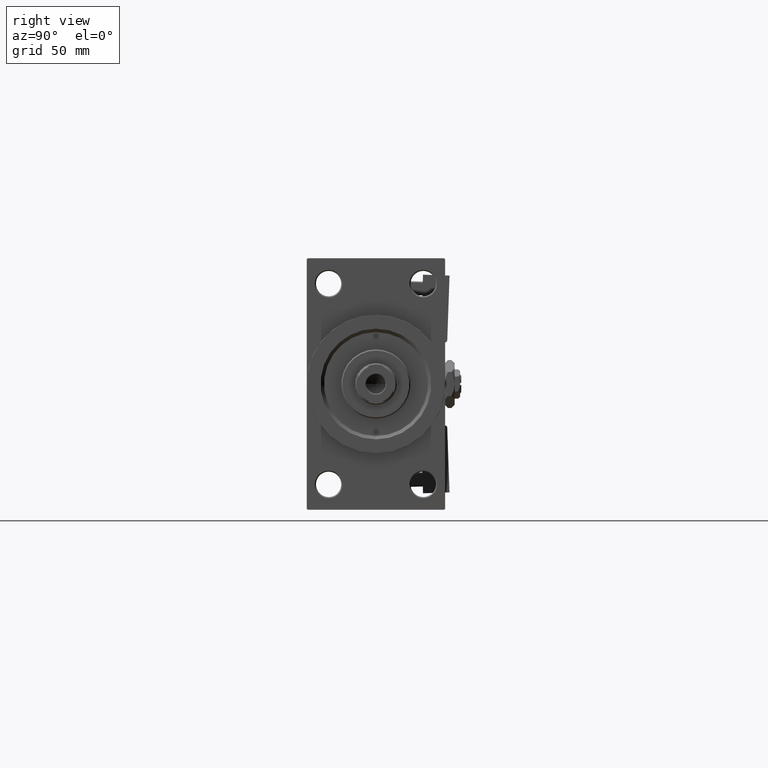
[diagram: clean part render]
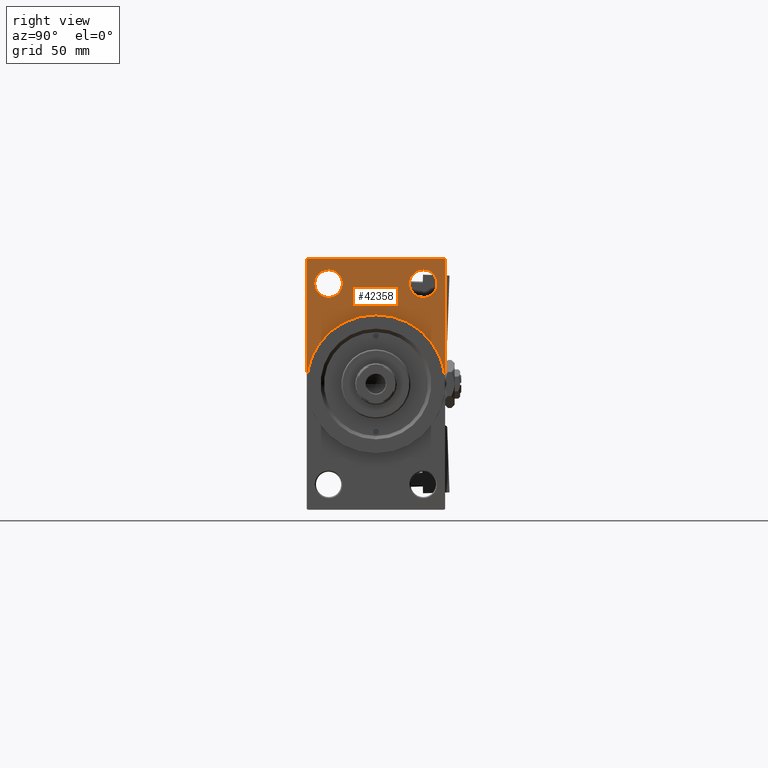
[diagram: same view with one face highlighted and labeled with its STEP entity id]
A machine part, right view. The second image highlights one B-rep face of the part: STEP entity #42358.
In plain terms, the highlighted planar face has unit normal (-1, 0, 0).
Its self-contained STEP definition (entity closure, byte-faithful):
#1211 = ORIENTED_EDGE ( 'NONE', *, *, #28834, .T. ) ;
#2300 = DIRECTION ( 'NONE',  ( -0.000000000000000000, 0.000000000000000000, 1.000000000000000000 ) ) ;
#2454 = AXIS2_PLACEMENT_3D ( 'NONE', #14907, #23282, #46302 ) ;
#2673 = VECTOR ( 'NONE', #33818, 1000.000000000000000 ) ;
#4033 = EDGE_CURVE ( 'NONE', #40288, #12835, #5641, .T. ) ;
#5641 = CIRCLE ( 'NONE', #20634, 5.999999999999977796 ) ;
#5718 = FACE_OUTER_BOUND ( 'NONE', #5876, .T. ) ;
#5876 = EDGE_LOOP ( 'NONE', ( #32584, #1211, #30215, #13556, #39751, #22142, #43362 ) ) ;
#6477 = CARTESIAN_POINT ( 'NONE',  ( 243.0000000000000000, 20.50000000000000000, 43.50000000000000000 ) ) ;
#8376 = VERTEX_POINT ( 'NONE', #15158 ) ;
#8412 = LINE ( 'NONE', #47889, #48034 ) ;
#8920 = DIRECTION ( 'NONE',  ( -0.000000000000000000, -0.7071067811865647812, -0.7071067811865302533 ) ) ;
#9360 = EDGE_CURVE ( 'NONE', #22356, #22790, #14158, .T. ) ;
#9593 = CIRCLE ( 'NONE', #38819, 5.999999999999977796 ) ;
#9625 = CARTESIAN_POINT ( 'NONE',  ( 243.0000000000000000, 0.000000000000000000, 0.000000000000000000 ) ) ;
#9720 = CARTESIAN_POINT ( 'NONE',  ( 243.0000000000000000, 30.00000000000000000, 0.000000000000000000 ) ) ;
#10210 = DIRECTION ( 'NONE',  ( 0.000000000000000000, -1.000000000000000000, 1.156482317317871478E-16 ) ) ;
#10682 = LINE ( 'NONE', #14338, #28586 ) ;
#11283 = ORIENTED_EDGE ( 'NONE', *, *, #4033, .T. ) ;
#11626 = VECTOR ( 'NONE', #10210, 1000.000000000000000 ) ;
#12835 = VERTEX_POINT ( 'NONE', #37301 ) ;
#12921 = AXIS2_PLACEMENT_3D ( 'NONE', #16356, #13201, #40157 ) ;
#13201 = DIRECTION ( 'NONE',  ( 1.000000000000000000, 0.000000000000000000, 0.000000000000000000 ) ) ;
#13551 = DIRECTION ( 'NONE',  ( -1.000000000000000000, 0.000000000000000000, -0.000000000000000000 ) ) ;
#13556 = ORIENTED_EDGE ( 'NONE', *, *, #37791, .F. ) ;
#13637 = CARTESIAN_POINT ( 'NONE',  ( 243.0000000000000000, -20.50000000000000000, 49.49999999999997158 ) ) ;
#14158 = CIRCLE ( 'NONE', #2454, 5.999999999999977796 ) ;
#14338 = CARTESIAN_POINT ( 'NONE',  ( 243.0000000000000000, 29.99999999999999645, 54.49999999999999289 ) ) ;
#14728 = VECTOR ( 'NONE', #47443, 1000.000000000000000 ) ;
#14907 = CARTESIAN_POINT ( 'NONE',  ( 243.0000000000000000, -20.50000000000000000, 43.50000000000000000 ) ) ;
#15076 = DIRECTION ( 'NONE',  ( 0.000000000000000000, 0.000000000000000000, 1.000000000000000000 ) ) ;
#15158 = CARTESIAN_POINT ( 'NONE',  ( 243.0000000000000000, -30.00000000000000000, 0.000000000000000000 ) ) ;
#16356 = CARTESIAN_POINT ( 'NONE',  ( 243.0000000000000000, 0.000000000000000000, 0.000000000000000000 ) ) ;
#16827 = EDGE_CURVE ( 'NONE', #45104, #46419, #46619, .T. ) ;
#17073 = EDGE_CURVE ( 'NONE', #45104, #22813, #10682, .T. ) ;
#17451 = DIRECTION ( 'NONE',  ( 0.000000000000000000, 0.000000000000000000, -1.000000000000000000 ) ) ;
#18493 = FACE_BOUND ( 'NONE', #39617, .T. ) ;
#19034 = CARTESIAN_POINT ( 'NONE',  ( 243.0000000000000000, -20.50000000000000000, 43.50000000000000000 ) ) ;
#19289 = DIRECTION ( 'NONE',  ( -1.000000000000000000, 0.000000000000000000, -0.000000000000000000 ) ) ;
#19982 = LINE ( 'NONE', #31499, #14728 ) ;
#20634 = AXIS2_PLACEMENT_3D ( 'NONE', #6477, #42284, #15076 ) ;
#21454 = CARTESIAN_POINT ( 'NONE',  ( 243.0000000000000000, 29.99999999999999645, 54.49999999999999289 ) ) ;
#22001 = ORIENTED_EDGE ( 'NONE', *, *, #27629, .T. ) ;
#22142 = ORIENTED_EDGE ( 'NONE', *, *, #17073, .F. ) ;
#22356 = VERTEX_POINT ( 'NONE', #50866 ) ;
#22499 = AXIS2_PLACEMENT_3D ( 'NONE', #28287, #44231, #17451 ) ;
#22790 = VERTEX_POINT ( 'NONE', #13637 ) ;
#22813 = VERTEX_POINT ( 'NONE', #9720 ) ;
#22862 = DIRECTION ( 'NONE',  ( 0.000000000000000000, 0.000000000000000000, 1.000000000000000000 ) ) ;
#23207 = VERTEX_POINT ( 'NONE', #27100 ) ;
#23282 = DIRECTION ( 'NONE',  ( -1.000000000000000000, 0.000000000000000000, -0.000000000000000000 ) ) ;
#24172 = CARTESIAN_POINT ( 'NONE',  ( 243.0000000000000000, 29.99999999999999645, 53.99999999999996447 ) ) ;
#24395 = EDGE_LOOP ( 'NONE', ( #22001, #11283 ) ) ;
#27100 = CARTESIAN_POINT ( 'NONE',  ( 243.0000000000000000, -29.50000000000000355, 54.50000000000000000 ) ) ;
#27106 = AXIS2_PLACEMENT_3D ( 'NONE', #46394, #42735, #22862 ) ;
#27629 = EDGE_CURVE ( 'NONE', #12835, #40288, #37950, .T. ) ;
#27721 = ORIENTED_EDGE ( 'NONE', *, *, #51233, .T. ) ;
#28287 = CARTESIAN_POINT ( 'NONE',  ( 243.0000000000000000, 0.000000000000000000, 0.000000000000000000 ) ) ;
#28334 = CIRCLE ( 'NONE', #22499, 30.00000000000000000 ) ;
#28586 = VECTOR ( 'NONE', #31841, 1000.000000000000000 ) ;
#28834 = EDGE_CURVE ( 'NONE', #23207, #31749, #8412, .T. ) ;
#30215 = ORIENTED_EDGE ( 'NONE', *, *, #32192, .T. ) ;
#31499 = CARTESIAN_POINT ( 'NONE',  ( 243.0000000000000000, -30.00000000000000000, 54.50000000000000000 ) ) ;
#31749 = VERTEX_POINT ( 'NONE', #38113 ) ;
#31841 = DIRECTION ( 'NONE',  ( 0.000000000000000000, 0.000000000000000000, -1.000000000000000000 ) ) ;
#31876 = VERTEX_POINT ( 'NONE', #43594 ) ;
#32192 = EDGE_CURVE ( 'NONE', #31749, #8376, #19982, .T. ) ;
#32584 = ORIENTED_EDGE ( 'NONE', *, *, #42069, .T. ) ;
#33818 = DIRECTION ( 'NONE',  ( 0.000000000000000000, -0.7071067811865279218, 0.7071067811865672237 ) ) ;
#37301 = CARTESIAN_POINT ( 'NONE',  ( 243.0000000000000000, 20.50000000000000000, 37.50000000000002132 ) ) ;
#37595 = FACE_BOUND ( 'NONE', #24395, .T. ) ;
#37791 = EDGE_CURVE ( 'NONE', #31876, #8376, #28334, .T. ) ;
#37950 = CIRCLE ( 'NONE', #27106, 5.999999999999977796 ) ;
#38111 = PLANE ( 'NONE',  #48436 ) ;
#38113 = CARTESIAN_POINT ( 'NONE',  ( 243.0000000000000000, -30.00000000000000000, 54.00000000000002842 ) ) ;
#38819 = AXIS2_PLACEMENT_3D ( 'NONE', #19034, #19289, #42584 ) ;
#39617 = EDGE_LOOP ( 'NONE', ( #40835, #27721 ) ) ;
#39751 = ORIENTED_EDGE ( 'NONE', *, *, #50777, .F. ) ;
#40157 = DIRECTION ( 'NONE',  ( 0.000000000000000000, 0.000000000000000000, -1.000000000000000000 ) ) ;
#40288 = VERTEX_POINT ( 'NONE', #44669 ) ;
#40835 = ORIENTED_EDGE ( 'NONE', *, *, #9360, .T. ) ;
#42069 = EDGE_CURVE ( 'NONE', #46419, #23207, #50454, .T. ) ;
#42284 = DIRECTION ( 'NONE',  ( -1.000000000000000000, 0.000000000000000000, -0.000000000000000000 ) ) ;
#42358 = ADVANCED_FACE ( 'NONE', ( #18493, #37595, #5718 ), #38111, .F. ) ;
#42584 = DIRECTION ( 'NONE',  ( 0.000000000000000000, 0.000000000000000000, 1.000000000000000000 ) ) ;
#42699 = CARTESIAN_POINT ( 'NONE',  ( 243.0000000000000000, 29.49999999999999645, 54.49999999999999289 ) ) ;
#42735 = DIRECTION ( 'NONE',  ( -1.000000000000000000, 0.000000000000000000, -0.000000000000000000 ) ) ;
#43362 = ORIENTED_EDGE ( 'NONE', *, *, #16827, .T. ) ;
#43594 = CARTESIAN_POINT ( 'NONE',  ( 243.0000000000000000, 0.000000000000000000, 30.00000000000000000 ) ) ;
#44219 = CARTESIAN_POINT ( 'NONE',  ( 243.0000000000000000, 29.49999999999999645, 54.49999999999999289 ) ) ;
#44231 = DIRECTION ( 'NONE',  ( 1.000000000000000000, 0.000000000000000000, 0.000000000000000000 ) ) ;
#44669 = CARTESIAN_POINT ( 'NONE',  ( 243.0000000000000000, 20.50000000000000000, 49.49999999999997158 ) ) ;
#45104 = VERTEX_POINT ( 'NONE', #24172 ) ;
#46302 = DIRECTION ( 'NONE',  ( 0.000000000000000000, 0.000000000000000000, 1.000000000000000000 ) ) ;
#46394 = CARTESIAN_POINT ( 'NONE',  ( 243.0000000000000000, 20.50000000000000000, 43.50000000000000000 ) ) ;
#46419 = VERTEX_POINT ( 'NONE', #44219 ) ;
#46619 = LINE ( 'NONE', #42699, #2673 ) ;
#47443 = DIRECTION ( 'NONE',  ( 0.000000000000000000, 0.000000000000000000, -1.000000000000000000 ) ) ;
#47889 = CARTESIAN_POINT ( 'NONE',  ( 243.0000000000000000, -30.00000000000000000, 54.00000000000002842 ) ) ;
#48034 = VECTOR ( 'NONE', #8920, 1000.000000000000114 ) ;
#48436 = AXIS2_PLACEMENT_3D ( 'NONE', #9625, #13551, #2300 ) ;
#50454 = LINE ( 'NONE', #21454, #11626 ) ;
#50777 = EDGE_CURVE ( 'NONE', #22813, #31876, #51351, .T. ) ;
#50866 = CARTESIAN_POINT ( 'NONE',  ( 243.0000000000000000, -20.50000000000000000, 37.50000000000002132 ) ) ;
#51233 = EDGE_CURVE ( 'NONE', #22790, #22356, #9593, .T. ) ;
#51351 = CIRCLE ( 'NONE', #12921, 30.00000000000000000 ) ;